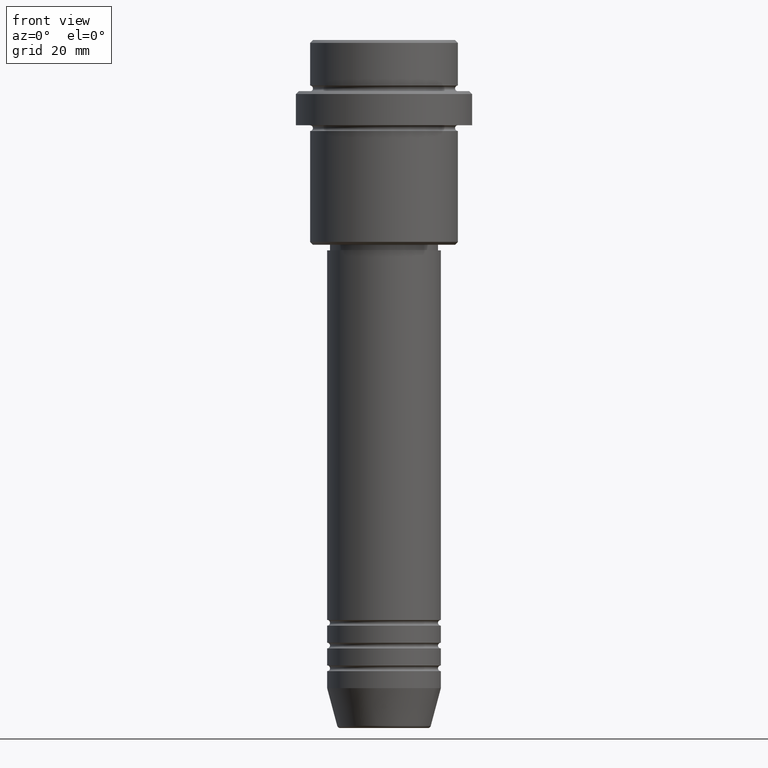
[diagram: clean part render]
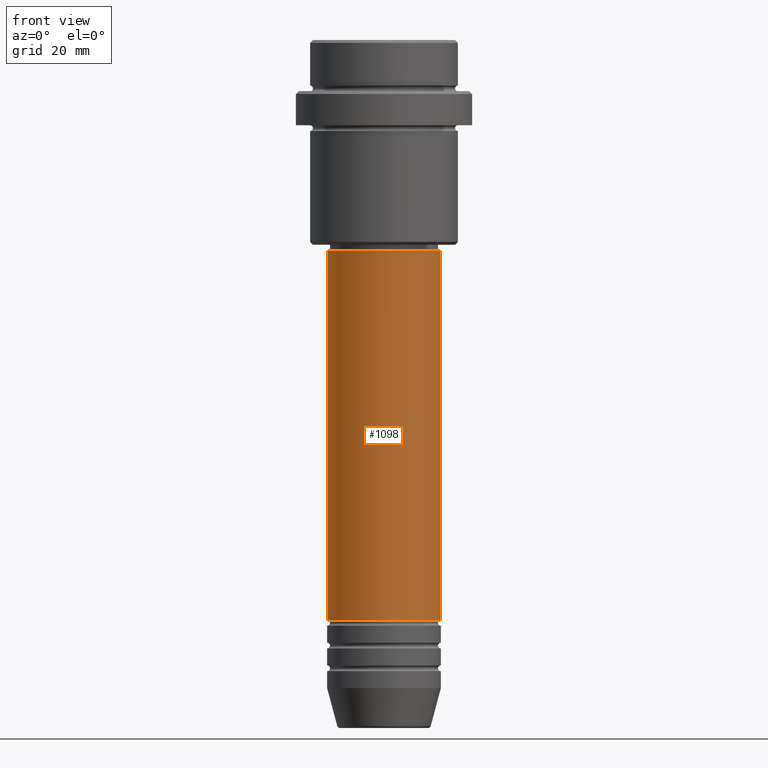
[diagram: same view with one face highlighted and labeled with its STEP entity id]
A machine part, front view. The second image highlights one B-rep face of the part: STEP entity #1098.
In plain terms, the highlighted cylindrical surface (partial cylindrical patch) has radius 10 mm, axis along (-0, -0, 1).
Its self-contained STEP definition (entity closure, byte-faithful):
#26 = DIRECTION ( 'NONE',  ( -0.000000000000000000, -0.000000000000000000, 1.000000000000000000 ) ) ;
#40 = AXIS2_PLACEMENT_3D ( 'NONE', #936, #292, #298 ) ;
#113 = CARTESIAN_POINT ( 'NONE',  ( 10.00000000000000178, 0.000000000000000000, 0.000000000000000000 ) ) ;
#118 = DIRECTION ( 'NONE',  ( -0.000000000000000000, -0.000000000000000000, 1.000000000000000000 ) ) ;
#227 = VECTOR ( 'NONE', #118, 1000.000000000000000 ) ;
#278 = DIRECTION ( 'NONE',  ( -0.000000000000000000, -0.000000000000000000, 1.000000000000000000 ) ) ;
#292 = DIRECTION ( 'NONE',  ( -0.000000000000000000, -0.000000000000000000, 1.000000000000000000 ) ) ;
#298 = DIRECTION ( 'NONE',  ( 1.000000000000000000, 0.000000000000000000, 0.000000000000000000 ) ) ;
#322 = CYLINDRICAL_SURFACE ( 'NONE', #976, 10.00000000000000178 ) ;
#324 = CIRCLE ( 'NONE', #40, 10.00000000000000178 ) ;
#414 = VERTEX_POINT ( 'NONE', #559 ) ;
#559 = CARTESIAN_POINT ( 'NONE',  ( -10.00000000000000000, 1.224646799147353256E-15, -101.9999999999999005 ) ) ;
#593 = CARTESIAN_POINT ( 'NONE',  ( -10.00000000000000178, 1.224646799147353454E-15, -37.00000000000002132 ) ) ;
#603 = AXIS2_PLACEMENT_3D ( 'NONE', #1166, #278, #1256 ) ;
#614 = CARTESIAN_POINT ( 'NONE',  ( 0.000000000000000000, 0.000000000000000000, 0.000000000000000000 ) ) ;
#620 = ORIENTED_EDGE ( 'NONE', *, *, #1106, .T. ) ;
#641 = LINE ( 'NONE', #113, #227 ) ;
#677 = CARTESIAN_POINT ( 'NONE',  ( -10.00000000000000178, 1.224646799147353454E-15, 0.000000000000000000 ) ) ;
#697 = ORIENTED_EDGE ( 'NONE', *, *, #982, .F. ) ;
#757 = DIRECTION ( 'NONE',  ( 1.000000000000000000, 0.000000000000000000, 0.000000000000000000 ) ) ;
#874 = FACE_OUTER_BOUND ( 'NONE', #1311, .T. ) ;
#888 = VECTOR ( 'NONE', #1364, 1000.000000000000000 ) ;
#930 = CIRCLE ( 'NONE', #603, 10.00000000000000000 ) ;
#936 = CARTESIAN_POINT ( 'NONE',  ( 0.000000000000000000, 0.000000000000000000, -37.00000000000002132 ) ) ;
#950 = CARTESIAN_POINT ( 'NONE',  ( 10.00000000000000000, 0.000000000000000000, -101.9999999999999005 ) ) ;
#970 = ORIENTED_EDGE ( 'NONE', *, *, #1232, .F. ) ;
#976 = AXIS2_PLACEMENT_3D ( 'NONE', #614, #26, #757 ) ;
#982 = EDGE_CURVE ( 'NONE', #1351, #1101, #324, .T. ) ;
#1064 = VERTEX_POINT ( 'NONE', #950 ) ;
#1098 = ADVANCED_FACE ( 'NONE', ( #874 ), #322, .T. ) ;
#1101 = VERTEX_POINT ( 'NONE', #1204 ) ;
#1106 = EDGE_CURVE ( 'NONE', #1064, #1101, #641, .T. ) ;
#1166 = CARTESIAN_POINT ( 'NONE',  ( 0.000000000000000000, 0.000000000000000000, -101.9999999999999005 ) ) ;
#1204 = CARTESIAN_POINT ( 'NONE',  ( 10.00000000000000178, 0.000000000000000000, -37.00000000000002132 ) ) ;
#1232 = EDGE_CURVE ( 'NONE', #414, #1351, #1352, .T. ) ;
#1256 = DIRECTION ( 'NONE',  ( 1.000000000000000000, 0.000000000000000000, 0.000000000000000000 ) ) ;
#1294 = ORIENTED_EDGE ( 'NONE', *, *, #1400, .T. ) ;
#1311 = EDGE_LOOP ( 'NONE', ( #970, #1294, #620, #697 ) ) ;
#1351 = VERTEX_POINT ( 'NONE', #593 ) ;
#1352 = LINE ( 'NONE', #677, #888 ) ;
#1364 = DIRECTION ( 'NONE',  ( -0.000000000000000000, -0.000000000000000000, 1.000000000000000000 ) ) ;
#1400 = EDGE_CURVE ( 'NONE', #414, #1064, #930, .T. ) ;